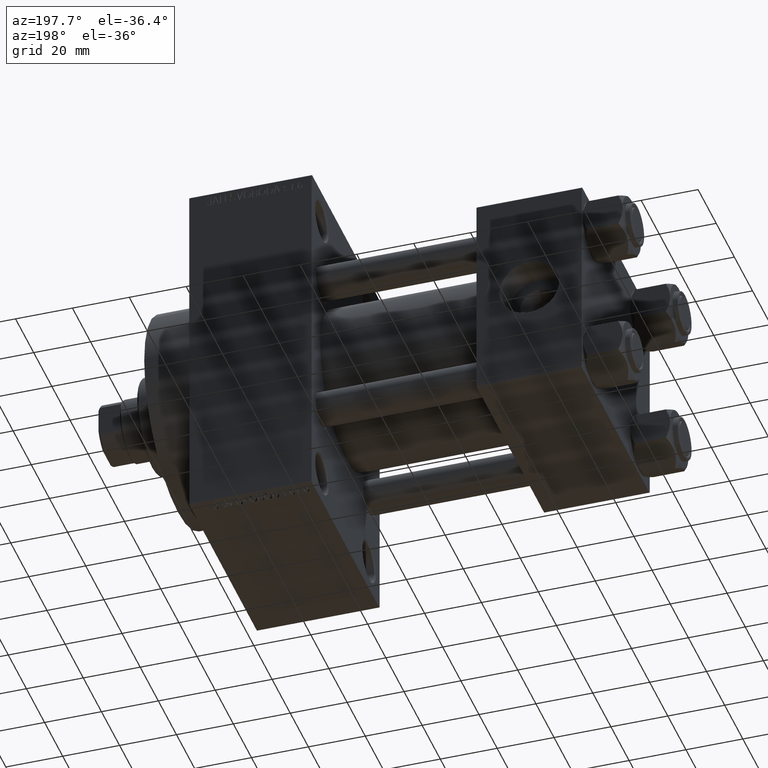
[diagram: clean part render]
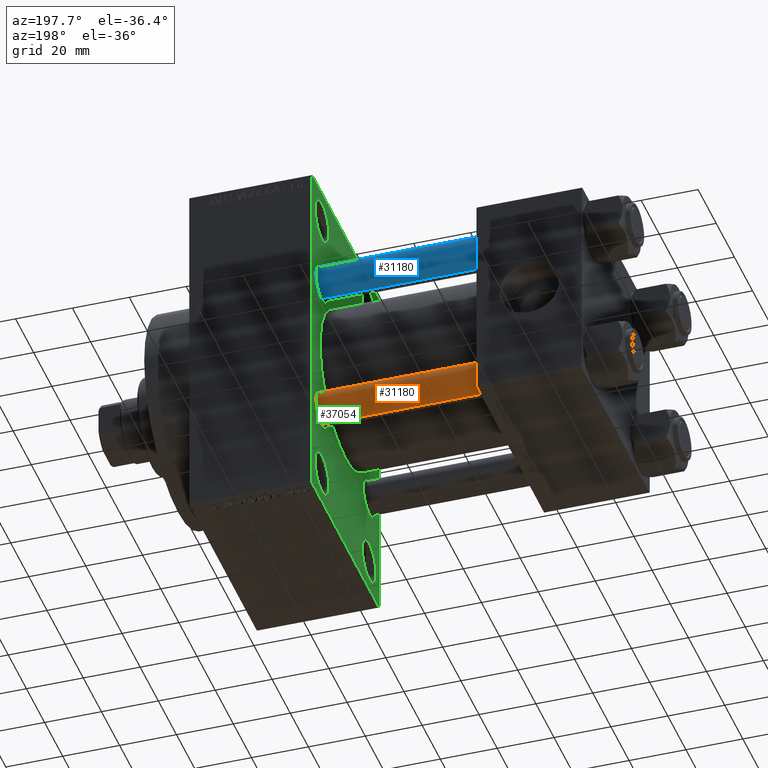
[diagram: same view with three faces highlighted in distinct colors, each labeled with its STEP entity id]
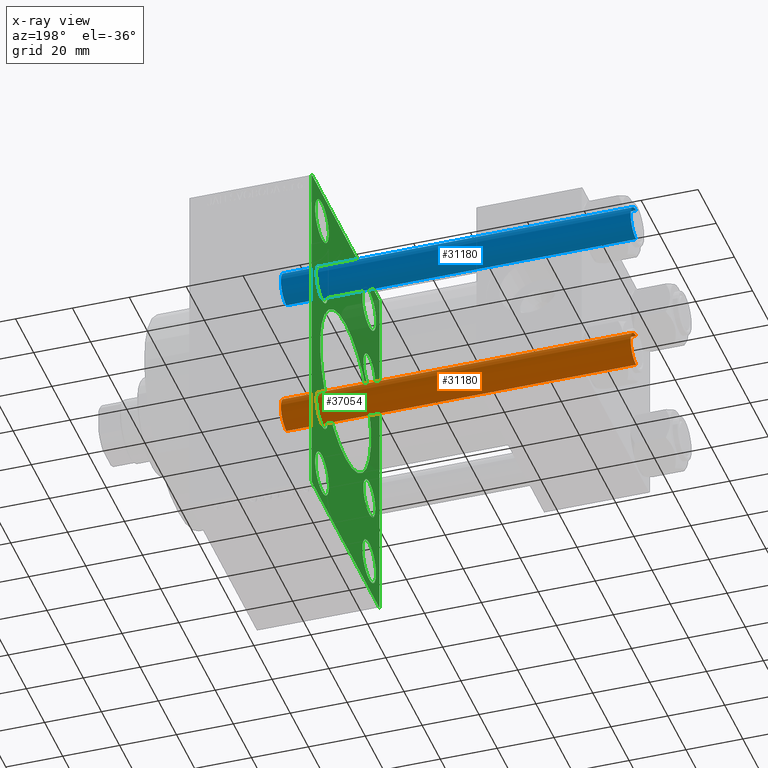
[diagram: x-ray of the same camera — body ghosted, the three highlighted faces saturated]
A machine part, auxiliary view with three faces highlighted in distinct colors.
The next image is the same camera in x-ray (body ghosted, the three faces saturated) — at least one of them is partly hidden behind the body in this view.
Their STEP definitions:

[orange] entity #31180 — the highlighted cylindrical surface (edge-blend (fillet) strip) has radius 6 mm, axis along (-1, -0, 0).
#1536 = EDGE_CURVE ( 'NONE', #41872, #33612, #36634, .T. ) ;
#1831 = ORIENTED_EDGE ( 'NONE', *, *, #28102, .T. ) ;
#2824 = EDGE_CURVE ( 'NONE', #41872, #39518, #46248, .T. ) ;
#3939 = CARTESIAN_POINT ( 'NONE',  ( -6.000000000000000888, 0.000000000000000000, 124.0000000000000000 ) ) ;
#5075 = AXIS2_PLACEMENT_3D ( 'NONE', #40998, #11388, #18552 ) ;
#6279 = EDGE_CURVE ( 'NONE', #45070, #33612, #45474, .T. ) ;
#8582 = CARTESIAN_POINT ( 'NONE',  ( 0.000000000000000000, 0.000000000000000000, 124.0000000000000000 ) ) ;
#8640 = DIRECTION ( 'NONE',  ( -0.000000000000000000, -0.000000000000000000, -1.000000000000000000 ) ) ;
#9634 = VECTOR ( 'NONE', #17531, 1000.000000000000000 ) ;
#10804 = CARTESIAN_POINT ( 'NONE',  ( 6.000000000000000888, 7.347880794884120722E-16, 123.5000000000000426 ) ) ;
#11388 = DIRECTION ( 'NONE',  ( -0.000000000000000000, -0.000000000000000000, 1.000000000000000000 ) ) ;
#16500 = ORIENTED_EDGE ( 'NONE', *, *, #6279, .T. ) ;
#17531 = DIRECTION ( 'NONE',  ( -0.000000000000000000, -0.000000000000000000, -1.000000000000000000 ) ) ;
#17681 = CARTESIAN_POINT ( 'NONE',  ( 0.000000000000000000, 0.000000000000000000, 123.5000000000000426 ) ) ;
#18552 = DIRECTION ( 'NONE',  ( 1.000000000000000000, 0.000000000000000000, 0.000000000000000000 ) ) ;
#19528 = CARTESIAN_POINT ( 'NONE',  ( 6.000000000000000888, 7.347880794884120722E-16, 0.4999999999999865663 ) ) ;
#22193 = CYLINDRICAL_SURFACE ( 'NONE', #37703, 6.000000000000000888 ) ;
#23400 = AXIS2_PLACEMENT_3D ( 'NONE', #17681, #36067, #42761 ) ;
#26443 = CARTESIAN_POINT ( 'NONE',  ( -6.000000000000000888, 0.000000000000000000, 0.4999999999999865663 ) ) ;
#26703 = DIRECTION ( 'NONE',  ( -0.000000000000000000, -0.000000000000000000, -1.000000000000000000 ) ) ;
#26941 = DIRECTION ( 'NONE',  ( -1.000000000000000000, 0.000000000000000000, 0.000000000000000000 ) ) ;
#28102 = EDGE_CURVE ( 'NONE', #39518, #45070, #32766, .T. ) ;
#31180 = ADVANCED_FACE ( 'NONE', ( #40094 ), #22193, .T. ) ;
#32110 = ORIENTED_EDGE ( 'NONE', *, *, #2824, .T. ) ;
#32766 = LINE ( 'NONE', #40164, #35309 ) ;
#33612 = VERTEX_POINT ( 'NONE', #26443 ) ;
#35309 = VECTOR ( 'NONE', #8640, 1000.000000000000000 ) ;
#36067 = DIRECTION ( 'NONE',  ( 0.000000000000000000, 0.000000000000000000, -1.000000000000000000 ) ) ;
#36634 = LINE ( 'NONE', #3939, #9634 ) ;
#37072 = CARTESIAN_POINT ( 'NONE',  ( -6.000000000000000888, 0.000000000000000000, 123.5000000000000426 ) ) ;
#37703 = AXIS2_PLACEMENT_3D ( 'NONE', #8582, #26703, #26941 ) ;
#39518 = VERTEX_POINT ( 'NONE', #10804 ) ;
#40094 = FACE_OUTER_BOUND ( 'NONE', #44201, .T. ) ;
#40164 = CARTESIAN_POINT ( 'NONE',  ( 6.000000000000000888, 7.347880794884120722E-16, 124.0000000000000000 ) ) ;
#40998 = CARTESIAN_POINT ( 'NONE',  ( 0.000000000000000000, 0.000000000000000000, 0.4999999999999865663 ) ) ;
#41655 = ORIENTED_EDGE ( 'NONE', *, *, #1536, .F. ) ;
#41872 = VERTEX_POINT ( 'NONE', #37072 ) ;
#42761 = DIRECTION ( 'NONE',  ( 1.000000000000000000, 0.000000000000000000, 0.000000000000000000 ) ) ;
#44201 = EDGE_LOOP ( 'NONE', ( #32110, #1831, #16500, #41655 ) ) ;
#45070 = VERTEX_POINT ( 'NONE', #19528 ) ;
#45474 = CIRCLE ( 'NONE', #5075, 6.000000000000000888 ) ;
#46248 = CIRCLE ( 'NONE', #23400, 6.000000000000000888 ) ;

[blue] entity #31180 — the highlighted cylindrical surface (edge-blend (fillet) strip) has radius 6 mm, axis along (1, -0, -0).
#1536 = EDGE_CURVE ( 'NONE', #41872, #33612, #36634, .T. ) ;
#1831 = ORIENTED_EDGE ( 'NONE', *, *, #28102, .T. ) ;
#2824 = EDGE_CURVE ( 'NONE', #41872, #39518, #46248, .T. ) ;
#3939 = CARTESIAN_POINT ( 'NONE',  ( -6.000000000000000888, 0.000000000000000000, 124.0000000000000000 ) ) ;
#5075 = AXIS2_PLACEMENT_3D ( 'NONE', #40998, #11388, #18552 ) ;
#6279 = EDGE_CURVE ( 'NONE', #45070, #33612, #45474, .T. ) ;
#8582 = CARTESIAN_POINT ( 'NONE',  ( 0.000000000000000000, 0.000000000000000000, 124.0000000000000000 ) ) ;
#8640 = DIRECTION ( 'NONE',  ( -0.000000000000000000, -0.000000000000000000, -1.000000000000000000 ) ) ;
#9634 = VECTOR ( 'NONE', #17531, 1000.000000000000000 ) ;
#10804 = CARTESIAN_POINT ( 'NONE',  ( 6.000000000000000888, 7.347880794884120722E-16, 123.5000000000000426 ) ) ;
#11388 = DIRECTION ( 'NONE',  ( -0.000000000000000000, -0.000000000000000000, 1.000000000000000000 ) ) ;
#16500 = ORIENTED_EDGE ( 'NONE', *, *, #6279, .T. ) ;
#17531 = DIRECTION ( 'NONE',  ( -0.000000000000000000, -0.000000000000000000, -1.000000000000000000 ) ) ;
#17681 = CARTESIAN_POINT ( 'NONE',  ( 0.000000000000000000, 0.000000000000000000, 123.5000000000000426 ) ) ;
#18552 = DIRECTION ( 'NONE',  ( 1.000000000000000000, 0.000000000000000000, 0.000000000000000000 ) ) ;
#19528 = CARTESIAN_POINT ( 'NONE',  ( 6.000000000000000888, 7.347880794884120722E-16, 0.4999999999999865663 ) ) ;
#22193 = CYLINDRICAL_SURFACE ( 'NONE', #37703, 6.000000000000000888 ) ;
#23400 = AXIS2_PLACEMENT_3D ( 'NONE', #17681, #36067, #42761 ) ;
#26443 = CARTESIAN_POINT ( 'NONE',  ( -6.000000000000000888, 0.000000000000000000, 0.4999999999999865663 ) ) ;
#26703 = DIRECTION ( 'NONE',  ( -0.000000000000000000, -0.000000000000000000, -1.000000000000000000 ) ) ;
#26941 = DIRECTION ( 'NONE',  ( -1.000000000000000000, 0.000000000000000000, 0.000000000000000000 ) ) ;
#28102 = EDGE_CURVE ( 'NONE', #39518, #45070, #32766, .T. ) ;
#31180 = ADVANCED_FACE ( 'NONE', ( #40094 ), #22193, .T. ) ;
#32110 = ORIENTED_EDGE ( 'NONE', *, *, #2824, .T. ) ;
#32766 = LINE ( 'NONE', #40164, #35309 ) ;
#33612 = VERTEX_POINT ( 'NONE', #26443 ) ;
#35309 = VECTOR ( 'NONE', #8640, 1000.000000000000000 ) ;
#36067 = DIRECTION ( 'NONE',  ( 0.000000000000000000, 0.000000000000000000, -1.000000000000000000 ) ) ;
#36634 = LINE ( 'NONE', #3939, #9634 ) ;
#37072 = CARTESIAN_POINT ( 'NONE',  ( -6.000000000000000888, 0.000000000000000000, 123.5000000000000426 ) ) ;
#37703 = AXIS2_PLACEMENT_3D ( 'NONE', #8582, #26703, #26941 ) ;
#39518 = VERTEX_POINT ( 'NONE', #10804 ) ;
#40094 = FACE_OUTER_BOUND ( 'NONE', #44201, .T. ) ;
#40164 = CARTESIAN_POINT ( 'NONE',  ( 6.000000000000000888, 7.347880794884120722E-16, 124.0000000000000000 ) ) ;
#40998 = CARTESIAN_POINT ( 'NONE',  ( 0.000000000000000000, 0.000000000000000000, 0.4999999999999865663 ) ) ;
#41655 = ORIENTED_EDGE ( 'NONE', *, *, #1536, .F. ) ;
#41872 = VERTEX_POINT ( 'NONE', #37072 ) ;
#42761 = DIRECTION ( 'NONE',  ( 1.000000000000000000, 0.000000000000000000, 0.000000000000000000 ) ) ;
#44201 = EDGE_LOOP ( 'NONE', ( #32110, #1831, #16500, #41655 ) ) ;
#45070 = VERTEX_POINT ( 'NONE', #19528 ) ;
#45474 = CIRCLE ( 'NONE', #5075, 6.000000000000000888 ) ;
#46248 = CIRCLE ( 'NONE', #23400, 6.000000000000000888 ) ;

[green] entity #37054 — the highlighted planar face has unit normal (-1, 0, 0).
#175 = CARTESIAN_POINT ( 'NONE',  ( 95.00000000000000000, -25.99999999999999645, -52.49999999999999289 ) ) ;
#328 = EDGE_CURVE ( 'NONE', #11359, #30229, #16444, .T. ) ;
#596 = LINE ( 'NONE', #29714, #30169 ) ;
#1688 = CARTESIAN_POINT ( 'NONE',  ( 95.00000000000000000, 26.14999999999999858, -32.65000000000001279 ) ) ;
#1847 = FACE_BOUND ( 'NONE', #22856, .T. ) ;
#2042 = CIRCLE ( 'NONE', #28714, 7.499999999999978684 ) ;
#2488 = CARTESIAN_POINT ( 'NONE',  ( 95.00000000000000000, 50.49999999999948841, -50.50000000000088107 ) ) ;
#2611 = EDGE_CURVE ( 'NONE', #19126, #13825, #40188, .T. ) ;
#2756 = ORIENTED_EDGE ( 'NONE', *, *, #35153, .T. ) ;
#2847 = DIRECTION ( 'NONE',  ( 0.000000000000000000, 0.000000000000000000, 1.000000000000000000 ) ) ;
#3132 = CARTESIAN_POINT ( 'NONE',  ( 95.00000000000000000, -25.99999999999999645, 59.99999999999997868 ) ) ;
#3162 = EDGE_CURVE ( 'NONE', #31793, #24799, #20964, .T. ) ;
#3161 = CARTESIAN_POINT ( 'NONE',  ( 95.00000000000000000, 26.00000000000000000, 52.49999999999999289 ) ) ;
#3229 = ORIENTED_EDGE ( 'NONE', *, *, #21040, .T. ) ;
#3255 = DIRECTION ( 'NONE',  ( 0.000000000000000000, 0.000000000000000000, 1.000000000000000000 ) ) ;
#3277 = DIRECTION ( 'NONE',  ( 0.000000000000000000, 0.000000000000000000, -1.000000000000000000 ) ) ;
#3559 = CARTESIAN_POINT ( 'NONE',  ( 95.00000000000000000, -25.99999999999999645, 52.50000000000000000 ) ) ;
#4006 = AXIS2_PLACEMENT_3D ( 'NONE', #30663, #18742, #33305 ) ;
#4267 = DIRECTION ( 'NONE',  ( 0.000000000000000000, 0.7071067811865672237, -0.7071067811865279218 ) ) ;
#4385 = VERTEX_POINT ( 'NONE', #3132 ) ;
#5478 = CIRCLE ( 'NONE', #29090, 6.500000000000008882 ) ;
#5491 = CARTESIAN_POINT ( 'NONE',  ( 95.00000000000000000, -37.49999999999999289, -63.49999999999997158 ) ) ;
#5660 = FACE_BOUND ( 'NONE', #17525, .T. ) ;
#5978 = ORIENTED_EDGE ( 'NONE', *, *, #3162, .T. ) ;
#6413 = AXIS2_PLACEMENT_3D ( 'NONE', #175, #29292, #43849 ) ;
#6501 = DIRECTION ( 'NONE',  ( 0.000000000000000000, 0.000000000000000000, 1.000000000000000000 ) ) ;
#6512 = CARTESIAN_POINT ( 'NONE',  ( 95.00000000000000000, 37.50000000000000000, 63.49999999999998579 ) ) ;
#6589 = EDGE_CURVE ( 'NONE', #10146, #7928, #2042, .T. ) ;
#6754 = VERTEX_POINT ( 'NONE', #23194 ) ;
#7010 = AXIS2_PLACEMENT_3D ( 'NONE', #12701, #12458, #27501 ) ;
#7209 = CARTESIAN_POINT ( 'NONE',  ( 95.00000000000000000, 26.00000000000000000, 45.00000000000001421 ) ) ;
#7215 = CIRCLE ( 'NONE', #6413, 7.499999999999978684 ) ;
#7403 = CARTESIAN_POINT ( 'NONE',  ( 95.00000000000000000, -25.99999999999999645, -45.00000000000001421 ) ) ;
#7436 = EDGE_CURVE ( 'NONE', #10294, #8414, #40950, .T. ) ;
#7498 = CARTESIAN_POINT ( 'NONE',  ( 95.00000000000000000, 37.50000000000000000, 63.99999999999998579 ) ) ;
#7504 = CARTESIAN_POINT ( 'NONE',  ( 95.00000000000000000, -25.99999999999999645, -59.99999999999997158 ) ) ;
#7533 = CIRCLE ( 'NONE', #34191, 28.00000000000000000 ) ;
#7553 = PLANE ( 'NONE',  #43983 ) ;
#7928 = VERTEX_POINT ( 'NONE', #7504 ) ;
#7963 = CARTESIAN_POINT ( 'NONE',  ( 95.00000000000000000, -26.14999999999999147, 32.65000000000001990 ) ) ;
#8060 = VERTEX_POINT ( 'NONE', #45883 ) ;
#8232 = LINE ( 'NONE', #32633, #21556 ) ;
#8326 = AXIS2_PLACEMENT_3D ( 'NONE', #13567, #17607, #28597 ) ;
#8403 = EDGE_LOOP ( 'NONE', ( #37719, #29848 ) ) ;
#8414 = VERTEX_POINT ( 'NONE', #1688 ) ;
#8561 = CARTESIAN_POINT ( 'NONE',  ( 95.00000000000000000, 26.00000000000000000, -52.49999999999999289 ) ) ;
#8769 = ORIENTED_EDGE ( 'NONE', *, *, #43950, .T. ) ;
#9000 = DIRECTION ( 'NONE',  ( 0.000000000000000000, 0.000000000000000000, 1.000000000000000000 ) ) ;
#9241 = DIRECTION ( 'NONE',  ( 0.000000000000000000, 0.000000000000000000, 1.000000000000000000 ) ) ;
#9700 = EDGE_LOOP ( 'NONE', ( #38089, #2756 ) ) ;
#10146 = VERTEX_POINT ( 'NONE', #7403 ) ;
#10294 = VERTEX_POINT ( 'NONE', #30293 ) ;
#10385 = AXIS2_PLACEMENT_3D ( 'NONE', #33943, #15816, #30382 ) ;
#10403 = ORIENTED_EDGE ( 'NONE', *, *, #42440, .T. ) ;
#10579 = CARTESIAN_POINT ( 'NONE',  ( 95.00000000000000000, 37.49999999999999289, -63.50000000000001421 ) ) ;
#10643 = DIRECTION ( 'NONE',  ( -0.000000000000000000, 0.7071067811865524577, 0.7071067811865426878 ) ) ;
#10783 = EDGE_CURVE ( 'NONE', #30229, #11359, #7533, .T. ) ;
#11110 = CARTESIAN_POINT ( 'NONE',  ( 95.00000000000000000, 0.000000000000000000, 0.000000000000000000 ) ) ;
#11359 = VERTEX_POINT ( 'NONE', #31230 ) ;
#11672 = CARTESIAN_POINT ( 'NONE',  ( 95.00000000000000000, 37.49999999999999289, -64.00000000000000000 ) ) ;
#11890 = DIRECTION ( 'NONE',  ( 0.000000000000000000, 0.000000000000000000, -1.000000000000000000 ) ) ;
#12201 = CARTESIAN_POINT ( 'NONE',  ( 95.00000000000000000, -36.99999999999993605, -64.00000000000001421 ) ) ;
#12356 = DIRECTION ( 'NONE',  ( 1.000000000000000000, -0.000000000000000000, 0.000000000000000000 ) ) ;
#12458 = DIRECTION ( 'NONE',  ( 1.000000000000000000, -0.000000000000000000, 0.000000000000000000 ) ) ;
#12558 = DIRECTION ( 'NONE',  ( 1.000000000000000000, -0.000000000000000000, 0.000000000000000000 ) ) ;
#12644 = DIRECTION ( 'NONE',  ( 0.000000000000000000, 0.000000000000000000, 1.000000000000000000 ) ) ;
#12701 = CARTESIAN_POINT ( 'NONE',  ( 95.00000000000000000, -26.14999999999999147, -26.15000000000000924 ) ) ;
#12825 = FACE_BOUND ( 'NONE', #41149, .T. ) ;
#12963 = EDGE_LOOP ( 'NONE', ( #3229, #13118 ) ) ;
#12984 = ORIENTED_EDGE ( 'NONE', *, *, #30527, .T. ) ;
#13118 = ORIENTED_EDGE ( 'NONE', *, *, #23936, .T. ) ;
#13506 = DIRECTION ( 'NONE',  ( 1.000000000000000000, -0.000000000000000000, 0.000000000000000000 ) ) ;
#13567 = CARTESIAN_POINT ( 'NONE',  ( 95.00000000000000000, -26.14999999999999147, 26.15000000000000924 ) ) ;
#13825 = VERTEX_POINT ( 'NONE', #20956 ) ;
#13877 = EDGE_CURVE ( 'NONE', #41445, #36180, #44905, .T. ) ;
#14029 = VERTEX_POINT ( 'NONE', #45455 ) ;
#14084 = VECTOR ( 'NONE', #33862, 1000.000000000000000 ) ;
#14222 = DIRECTION ( 'NONE',  ( -1.000000000000000000, 0.000000000000000000, -0.000000000000000000 ) ) ;
#14689 = VERTEX_POINT ( 'NONE', #35528 ) ;
#14921 = ORIENTED_EDGE ( 'NONE', *, *, #45778, .T. ) ;
#14983 = VECTOR ( 'NONE', #25255, 1000.000000000000000 ) ;
#15541 = CARTESIAN_POINT ( 'NONE',  ( 95.00000000000000000, -26.14999999999999147, 26.15000000000000924 ) ) ;
#15816 = DIRECTION ( 'NONE',  ( 1.000000000000000000, -0.000000000000000000, 0.000000000000000000 ) ) ;
#15997 = EDGE_LOOP ( 'NONE', ( #23350, #32100, #29192, #43577, #16958, #14921, #5978, #29462 ) ) ;
#16263 = CARTESIAN_POINT ( 'NONE',  ( 95.00000000000000000, 26.14999999999999858, 26.15000000000000213 ) ) ;
#16271 = CIRCLE ( 'NONE', #19307, 7.499999999999978684 ) ;
#16399 = FACE_BOUND ( 'NONE', #9700, .T. ) ;
#16444 = CIRCLE ( 'NONE', #17212, 28.00000000000000000 ) ;
#16506 = CIRCLE ( 'NONE', #10385, 6.500000000000008882 ) ;
#16890 = EDGE_CURVE ( 'NONE', #6754, #13825, #24709, .T. ) ;
#16958 = ORIENTED_EDGE ( 'NONE', *, *, #2611, .F. ) ;
#17212 = AXIS2_PLACEMENT_3D ( 'NONE', #23114, #40792, #11890 ) ;
#17522 = VECTOR ( 'NONE', #10643, 1000.000000000000000 ) ;
#17525 = EDGE_LOOP ( 'NONE', ( #18023, #10403 ) ) ;
#17607 = DIRECTION ( 'NONE',  ( 1.000000000000000000, -0.000000000000000000, 0.000000000000000000 ) ) ;
#17613 = CARTESIAN_POINT ( 'NONE',  ( 95.00000000000000000, -26.14999999999999147, 19.65000000000000213 ) ) ;
#18023 = ORIENTED_EDGE ( 'NONE', *, *, #23058, .T. ) ;
#18417 = DIRECTION ( 'NONE',  ( 0.000000000000000000, 0.000000000000000000, 1.000000000000000000 ) ) ;
#18490 = CIRCLE ( 'NONE', #4006, 7.499999999999978684 ) ;
#18603 = ORIENTED_EDGE ( 'NONE', *, *, #10783, .T. ) ;
#18742 = DIRECTION ( 'NONE',  ( 1.000000000000000000, -0.000000000000000000, 0.000000000000000000 ) ) ;
#18827 = AXIS2_PLACEMENT_3D ( 'NONE', #45515, #13506, #9241 ) ;
#18881 = DIRECTION ( 'NONE',  ( 1.000000000000000000, -0.000000000000000000, 0.000000000000000000 ) ) ;
#18900 = CARTESIAN_POINT ( 'NONE',  ( 95.00000000000000000, 8.269258236473776482E-16, -28.00000000000000000 ) ) ;
#19050 = CARTESIAN_POINT ( 'NONE',  ( 95.00000000000000000, 37.50000000000000000, 63.99999999999998579 ) ) ;
#19126 = VERTEX_POINT ( 'NONE', #21533 ) ;
#19307 = AXIS2_PLACEMENT_3D ( 'NONE', #19494, #12558, #9000 ) ;
#19347 = CARTESIAN_POINT ( 'NONE',  ( 95.00000000000000000, -26.14999999999999147, -26.15000000000000924 ) ) ;
#19430 = DIRECTION ( 'NONE',  ( 0.000000000000000000, -0.7071067811865574537, 0.7071067811865376918 ) ) ;
#19487 = CARTESIAN_POINT ( 'NONE',  ( 95.00000000000000000, -2.602085213965210642E-15, 0.000000000000000000 ) ) ;
#19494 = CARTESIAN_POINT ( 'NONE',  ( 95.00000000000000000, 26.00000000000000000, 52.49999999999999289 ) ) ;
#19530 = CIRCLE ( 'NONE', #27904, 6.500000000000008882 ) ;
#19557 = VERTEX_POINT ( 'NONE', #43671 ) ;
#19824 = DIRECTION ( 'NONE',  ( 1.000000000000000000, -0.000000000000000000, 0.000000000000000000 ) ) ;
#20213 = FACE_BOUND ( 'NONE', #28629, .T. ) ;
#20256 = VERTEX_POINT ( 'NONE', #12201 ) ;
#20851 = DIRECTION ( 'NONE',  ( -0.000000000000000000, -0.7071067811865573427, -0.7071067811865378028 ) ) ;
#20956 = CARTESIAN_POINT ( 'NONE',  ( 95.00000000000000000, -36.99999999999995737, 63.99999999999997158 ) ) ;
#20964 = LINE ( 'NONE', #19050, #14983 ) ;
#21040 = EDGE_CURVE ( 'NONE', #39331, #8060, #32904, .T. ) ;
#21533 = CARTESIAN_POINT ( 'NONE',  ( 95.00000000000000000, 36.99999999999997158, 63.99999999999998579 ) ) ;
#21556 = VECTOR ( 'NONE', #3277, 1000.000000000000000 ) ;
#21625 = FACE_OUTER_BOUND ( 'NONE', #15997, .T. ) ;
#21764 = CARTESIAN_POINT ( 'NONE',  ( 95.00000000000000000, 26.00000000000000000, -52.49999999999999289 ) ) ;
#22702 = ORIENTED_EDGE ( 'NONE', *, *, #37914, .T. ) ;
#22856 = EDGE_LOOP ( 'NONE', ( #24346, #22702 ) ) ;
#22991 = AXIS2_PLACEMENT_3D ( 'NONE', #16263, #30122, #30818 ) ;
#23058 = EDGE_CURVE ( 'NONE', #4385, #30938, #18490, .T. ) ;
#23114 = CARTESIAN_POINT ( 'NONE',  ( 95.00000000000000000, -2.602085213965210642E-15, 0.000000000000000000 ) ) ;
#23194 = CARTESIAN_POINT ( 'NONE',  ( 95.00000000000000000, -37.49999999999999289, 63.49999999999994316 ) ) ;
#23198 = CARTESIAN_POINT ( 'NONE',  ( 95.00000000000000000, 26.00000000000000000, 59.99999999999997158 ) ) ;
#23313 = AXIS2_PLACEMENT_3D ( 'NONE', #3161, #38970, #6501 ) ;
#23350 = ORIENTED_EDGE ( 'NONE', *, *, #31127, .T. ) ;
#23769 = ORIENTED_EDGE ( 'NONE', *, *, #7436, .T. ) ;
#23936 = EDGE_CURVE ( 'NONE', #8060, #39331, #5478, .T. ) ;
#24346 = ORIENTED_EDGE ( 'NONE', *, *, #47172, .T. ) ;
#24482 = CARTESIAN_POINT ( 'NONE',  ( 95.00000000000000000, -50.49999999999970868, 50.50000000000040501 ) ) ;
#24639 = CARTESIAN_POINT ( 'NONE',  ( 95.00000000000000000, 26.00000000000000000, -59.99999999999997158 ) ) ;
#24709 = LINE ( 'NONE', #24482, #17522 ) ;
#24799 = VERTEX_POINT ( 'NONE', #10579 ) ;
#24880 = DIRECTION ( 'NONE',  ( 1.000000000000000000, -0.000000000000000000, 0.000000000000000000 ) ) ;
#24928 = VERTEX_POINT ( 'NONE', #26076 ) ;
#24958 = VECTOR ( 'NONE', #20851, 1000.000000000000000 ) ;
#25080 = EDGE_CURVE ( 'NONE', #14689, #14029, #35957, .T. ) ;
#25255 = DIRECTION ( 'NONE',  ( 0.000000000000000000, -5.421010862427522170E-17, -1.000000000000000000 ) ) ;
#25326 = ORIENTED_EDGE ( 'NONE', *, *, #6589, .T. ) ;
#25470 = CARTESIAN_POINT ( 'NONE',  ( 95.00000000000000000, 26.14999999999999858, 32.65000000000001990 ) ) ;
#26076 = CARTESIAN_POINT ( 'NONE',  ( 95.00000000000000000, 26.00000000000000000, -45.00000000000001421 ) ) ;
#26337 = CIRCLE ( 'NONE', #33970, 7.499999999999978684 ) ;
#26408 = AXIS2_PLACEMENT_3D ( 'NONE', #15541, #18881, #30100 ) ;
#27501 = DIRECTION ( 'NONE',  ( 0.000000000000000000, 0.000000000000000000, 1.000000000000000000 ) ) ;
#27734 = EDGE_CURVE ( 'NONE', #6754, #36623, #8232, .T. ) ;
#27904 = AXIS2_PLACEMENT_3D ( 'NONE', #19347, #19824, #12644 ) ;
#28597 = DIRECTION ( 'NONE',  ( 0.000000000000000000, 0.000000000000000000, 1.000000000000000000 ) ) ;
#28629 = EDGE_LOOP ( 'NONE', ( #46551, #18603 ) ) ;
#28714 = AXIS2_PLACEMENT_3D ( 'NONE', #35388, #24880, #45273 ) ;
#28861 = EDGE_CURVE ( 'NONE', #32615, #34610, #16271, .T. ) ;
#29090 = AXIS2_PLACEMENT_3D ( 'NONE', #39778, #36662, #3255 ) ;
#29192 = ORIENTED_EDGE ( 'NONE', *, *, #27734, .F. ) ;
#29213 = DIRECTION ( 'NONE',  ( 0.000000000000000000, -1.000000000000000000, -1.850371707708594563E-16 ) ) ;
#29292 = DIRECTION ( 'NONE',  ( 1.000000000000000000, -0.000000000000000000, 0.000000000000000000 ) ) ;
#29343 = LINE ( 'NONE', #37209, #38647 ) ;
#29400 = DIRECTION ( 'NONE',  ( 1.000000000000000000, -0.000000000000000000, 0.000000000000000000 ) ) ;
#29462 = ORIENTED_EDGE ( 'NONE', *, *, #46845, .T. ) ;
#29714 = CARTESIAN_POINT ( 'NONE',  ( 95.00000000000000000, -50.49999999999945999, -50.50000000000086686 ) ) ;
#29848 = ORIENTED_EDGE ( 'NONE', *, *, #13877, .T. ) ;
#30100 = DIRECTION ( 'NONE',  ( 0.000000000000000000, 0.000000000000000000, 1.000000000000000000 ) ) ;
#30122 = DIRECTION ( 'NONE',  ( 1.000000000000000000, -0.000000000000000000, 0.000000000000000000 ) ) ;
#30169 = VECTOR ( 'NONE', #19430, 999.9999999999998863 ) ;
#30229 = VERTEX_POINT ( 'NONE', #18900 ) ;
#30293 = CARTESIAN_POINT ( 'NONE',  ( 95.00000000000000000, 26.14999999999999858, -19.64999999999999503 ) ) ;
#30382 = DIRECTION ( 'NONE',  ( 0.000000000000000000, 0.000000000000000000, 1.000000000000000000 ) ) ;
#30527 = EDGE_CURVE ( 'NONE', #7928, #10146, #7215, .T. ) ;
#30663 = CARTESIAN_POINT ( 'NONE',  ( 95.00000000000000000, -25.99999999999999645, 52.50000000000000000 ) ) ;
#30818 = DIRECTION ( 'NONE',  ( 0.000000000000000000, 0.000000000000000000, 1.000000000000000000 ) ) ;
#30938 = VERTEX_POINT ( 'NONE', #42970 ) ;
#30959 = FACE_BOUND ( 'NONE', #8403, .T. ) ;
#31127 = EDGE_CURVE ( 'NONE', #19557, #20256, #37457, .T. ) ;
#31230 = CARTESIAN_POINT ( 'NONE',  ( 95.00000000000000000, -2.602085213965210642E-15, 28.00000000000000000 ) ) ;
#31793 = VERTEX_POINT ( 'NONE', #6512 ) ;
#32100 = ORIENTED_EDGE ( 'NONE', *, *, #38397, .T. ) ;
#32428 = VERTEX_POINT ( 'NONE', #24639 ) ;
#32615 = VERTEX_POINT ( 'NONE', #23198 ) ;
#32633 = CARTESIAN_POINT ( 'NONE',  ( 95.00000000000000000, -37.49999999999999289, 63.99999999999997158 ) ) ;
#32904 = CIRCLE ( 'NONE', #22991, 6.500000000000008882 ) ;
#33305 = DIRECTION ( 'NONE',  ( 0.000000000000000000, 0.000000000000000000, 1.000000000000000000 ) ) ;
#33693 = ORIENTED_EDGE ( 'NONE', *, *, #36354, .T. ) ;
#33862 = DIRECTION ( 'NONE',  ( 0.000000000000000000, -1.000000000000000000, -1.850371707708594563E-16 ) ) ;
#33943 = CARTESIAN_POINT ( 'NONE',  ( 95.00000000000000000, 26.14999999999999858, -26.15000000000000213 ) ) ;
#33970 = AXIS2_PLACEMENT_3D ( 'NONE', #3559, #39604, #2847 ) ;
#34041 = DIRECTION ( 'NONE',  ( 0.000000000000000000, 0.000000000000000000, -1.000000000000000000 ) ) ;
#34191 = AXIS2_PLACEMENT_3D ( 'NONE', #19487, #40744, #34041 ) ;
#34610 = VERTEX_POINT ( 'NONE', #7209 ) ;
#34864 = CIRCLE ( 'NONE', #34899, 7.499999999999978684 ) ;
#34899 = AXIS2_PLACEMENT_3D ( 'NONE', #21764, #29400, #18417 ) ;
#35153 = EDGE_CURVE ( 'NONE', #34610, #32615, #42391, .T. ) ;
#35184 = LINE ( 'NONE', #2488, #24958 ) ;
#35388 = CARTESIAN_POINT ( 'NONE',  ( 95.00000000000000000, -25.99999999999999645, -52.49999999999999289 ) ) ;
#35498 = CIRCLE ( 'NONE', #38583, 7.499999999999978684 ) ;
#35528 = CARTESIAN_POINT ( 'NONE',  ( 95.00000000000000000, -26.14999999999999147, -32.65000000000001990 ) ) ;
#35957 = CIRCLE ( 'NONE', #7010, 6.500000000000008882 ) ;
#36180 = VERTEX_POINT ( 'NONE', #7963 ) ;
#36354 = EDGE_CURVE ( 'NONE', #8414, #10294, #16506, .T. ) ;
#36623 = VERTEX_POINT ( 'NONE', #5491 ) ;
#36662 = DIRECTION ( 'NONE',  ( 1.000000000000000000, -0.000000000000000000, 0.000000000000000000 ) ) ;
#37054 = ADVANCED_FACE ( 'NONE', ( #5660, #46443, #1847, #16399, #30959, #45524, #12825, #41948, #20213, #21625 ), #7553, .T. ) ;
#37209 = CARTESIAN_POINT ( 'NONE',  ( 95.00000000000000000, 50.49999999999894840, 50.50000000000176215 ) ) ;
#37457 = LINE ( 'NONE', #11672, #14084 ) ;
#37719 = ORIENTED_EDGE ( 'NONE', *, *, #44684, .T. ) ;
#37914 = EDGE_CURVE ( 'NONE', #32428, #24928, #35498, .T. ) ;
#38089 = ORIENTED_EDGE ( 'NONE', *, *, #28861, .T. ) ;
#38397 = EDGE_CURVE ( 'NONE', #20256, #36623, #596, .T. ) ;
#38583 = AXIS2_PLACEMENT_3D ( 'NONE', #8561, #12356, #44826 ) ;
#38647 = VECTOR ( 'NONE', #4267, 1000.000000000000000 ) ;
#38970 = DIRECTION ( 'NONE',  ( 1.000000000000000000, -0.000000000000000000, 0.000000000000000000 ) ) ;
#39050 = EDGE_LOOP ( 'NONE', ( #8769, #41501 ) ) ;
#39331 = VERTEX_POINT ( 'NONE', #25470 ) ;
#39401 = CIRCLE ( 'NONE', #26408, 6.500000000000008882 ) ;
#39604 = DIRECTION ( 'NONE',  ( 1.000000000000000000, -0.000000000000000000, 0.000000000000000000 ) ) ;
#39778 = CARTESIAN_POINT ( 'NONE',  ( 95.00000000000000000, 26.14999999999999858, 26.15000000000000213 ) ) ;
#40188 = LINE ( 'NONE', #7498, #47014 ) ;
#40744 = DIRECTION ( 'NONE',  ( 1.000000000000000000, 0.000000000000000000, 0.000000000000000000 ) ) ;
#40792 = DIRECTION ( 'NONE',  ( 1.000000000000000000, 0.000000000000000000, 0.000000000000000000 ) ) ;
#40950 = CIRCLE ( 'NONE', #18827, 6.500000000000008882 ) ;
#41149 = EDGE_LOOP ( 'NONE', ( #23769, #33693 ) ) ;
#41445 = VERTEX_POINT ( 'NONE', #17613 ) ;
#41501 = ORIENTED_EDGE ( 'NONE', *, *, #25080, .T. ) ;
#41948 = FACE_BOUND ( 'NONE', #39050, .T. ) ;
#42391 = CIRCLE ( 'NONE', #23313, 7.499999999999978684 ) ;
#42440 = EDGE_CURVE ( 'NONE', #30938, #4385, #26337, .T. ) ;
#42970 = CARTESIAN_POINT ( 'NONE',  ( 95.00000000000000000, -25.99999999999999645, 45.00000000000002132 ) ) ;
#43577 = ORIENTED_EDGE ( 'NONE', *, *, #16890, .T. ) ;
#43585 = DIRECTION ( 'NONE',  ( -0.000000000000000000, 0.000000000000000000, 1.000000000000000000 ) ) ;
#43671 = CARTESIAN_POINT ( 'NONE',  ( 95.00000000000000000, 36.99999999999999289, -64.00000000000000000 ) ) ;
#43849 = DIRECTION ( 'NONE',  ( 0.000000000000000000, 0.000000000000000000, 1.000000000000000000 ) ) ;
#43950 = EDGE_CURVE ( 'NONE', #14029, #14689, #19530, .T. ) ;
#43983 = AXIS2_PLACEMENT_3D ( 'NONE', #11110, #14222, #43585 ) ;
#44034 = EDGE_LOOP ( 'NONE', ( #25326, #12984 ) ) ;
#44684 = EDGE_CURVE ( 'NONE', #36180, #41445, #39401, .T. ) ;
#44826 = DIRECTION ( 'NONE',  ( 0.000000000000000000, 0.000000000000000000, 1.000000000000000000 ) ) ;
#44905 = CIRCLE ( 'NONE', #8326, 6.500000000000008882 ) ;
#45273 = DIRECTION ( 'NONE',  ( 0.000000000000000000, 0.000000000000000000, 1.000000000000000000 ) ) ;
#45455 = CARTESIAN_POINT ( 'NONE',  ( 95.00000000000000000, -26.14999999999999147, -19.65000000000000213 ) ) ;
#45515 = CARTESIAN_POINT ( 'NONE',  ( 95.00000000000000000, 26.14999999999999858, -26.15000000000000213 ) ) ;
#45524 = FACE_BOUND ( 'NONE', #12963, .T. ) ;
#45778 = EDGE_CURVE ( 'NONE', #19126, #31793, #29343, .T. ) ;
#45883 = CARTESIAN_POINT ( 'NONE',  ( 95.00000000000000000, 26.14999999999999858, 19.64999999999999147 ) ) ;
#46443 = FACE_BOUND ( 'NONE', #44034, .T. ) ;
#46551 = ORIENTED_EDGE ( 'NONE', *, *, #328, .T. ) ;
#46845 = EDGE_CURVE ( 'NONE', #24799, #19557, #35184, .T. ) ;
#47014 = VECTOR ( 'NONE', #29213, 1000.000000000000000 ) ;
#47172 = EDGE_CURVE ( 'NONE', #24928, #32428, #34864, .T. ) ;